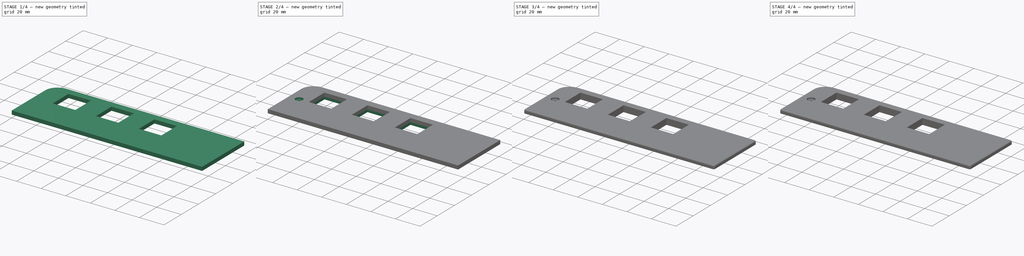
[diagram: build sequence overview — one tinted view per stage of 4, left to right]
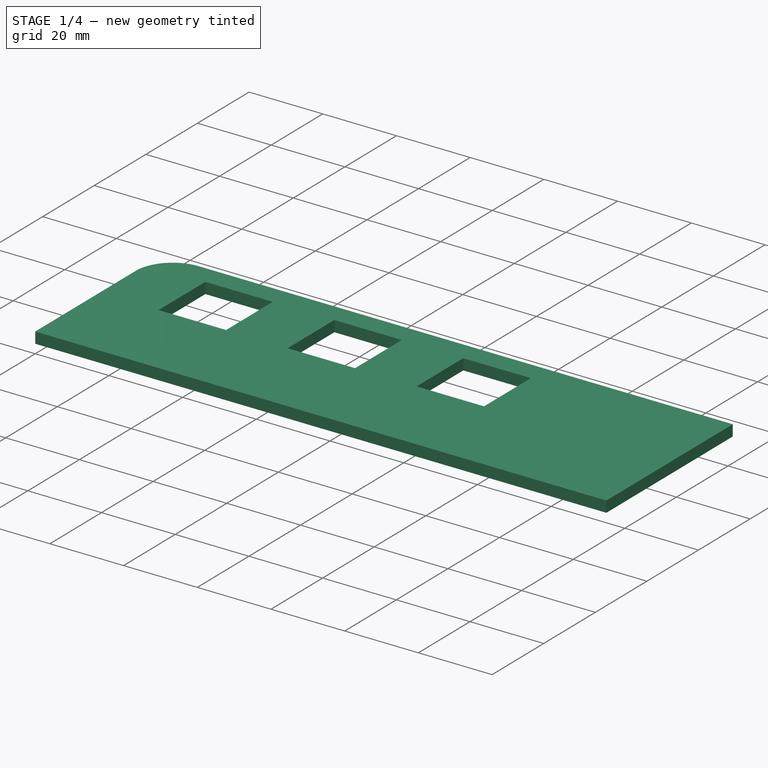
[diagram: stage 1 of 4 — iso view after this stage's code; geometry added in this stage tinted green]
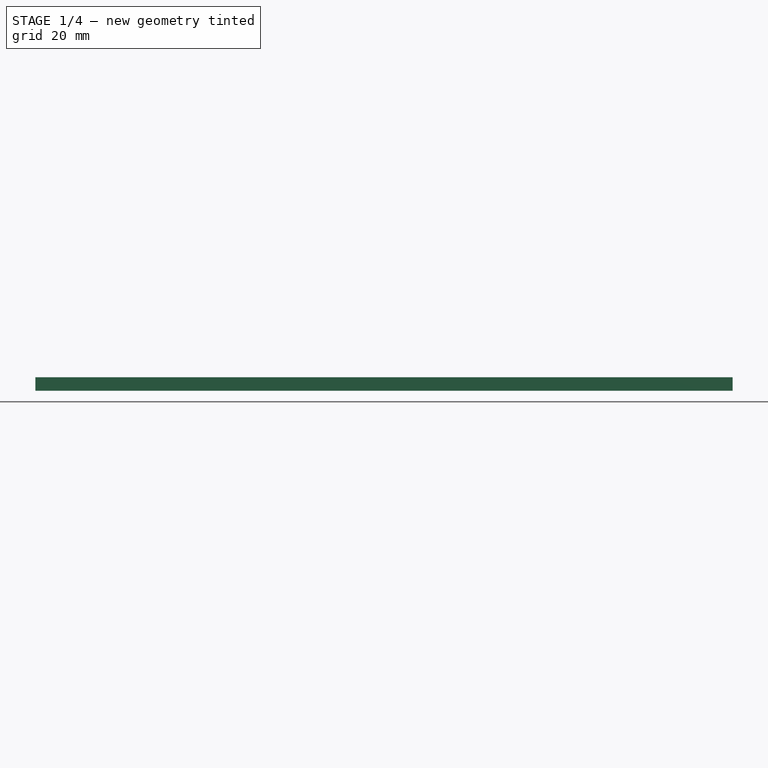
[diagram: stage 1 of 4 — front view after this stage's code; geometry added in this stage tinted green]
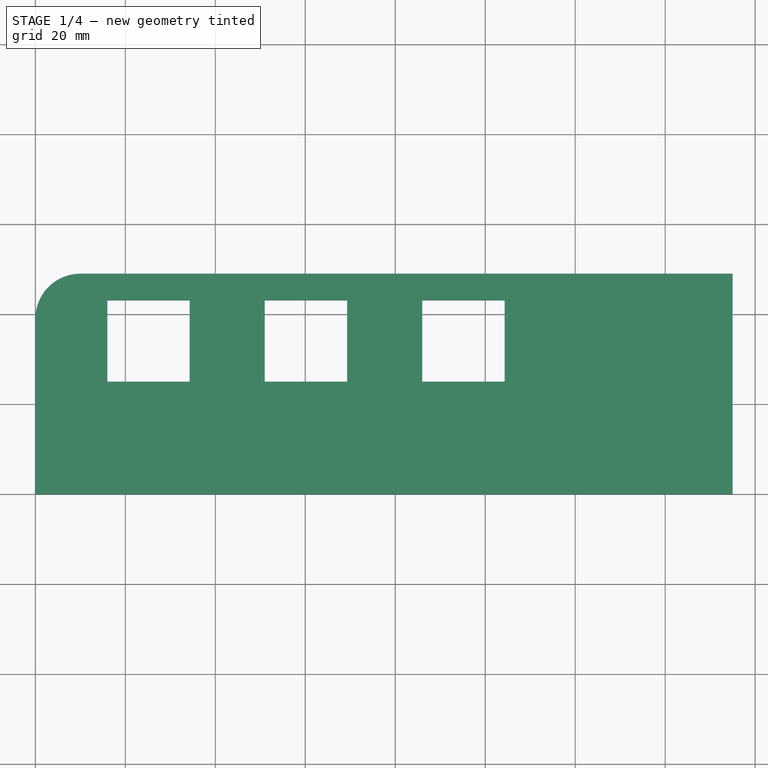
[diagram: stage 1 of 4 — top view after this stage's code; geometry added in this stage tinted green]
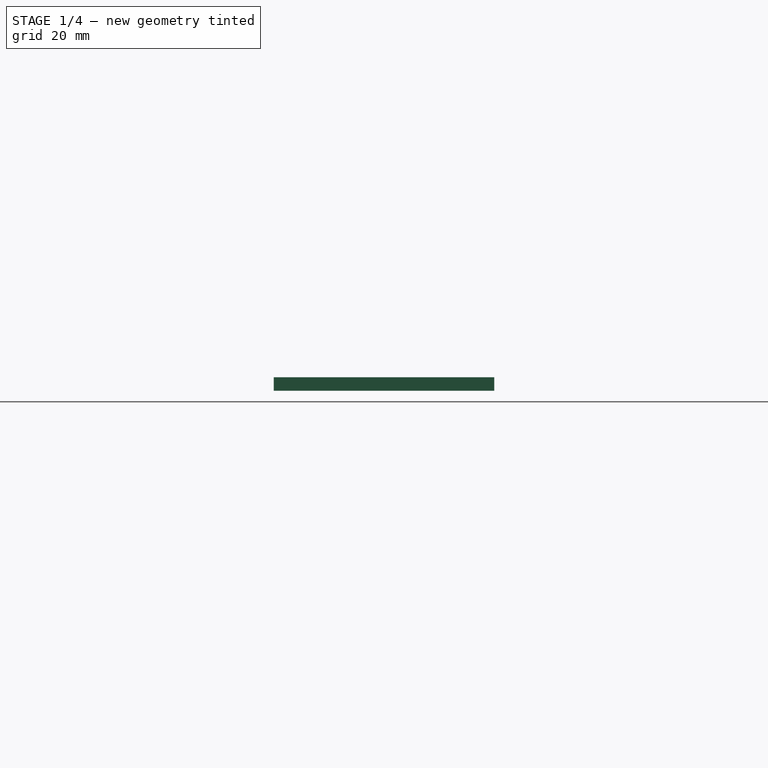
[diagram: stage 1 of 4 — right view after this stage's code; geometry added in this stage tinted green]
FCSTD DOCUMENT  (FreeCAD 0.21R33694 (Git))
Label: EnjoliveurBoutonsGauche2
License: All rights reserved
LicenseURL: http://en.wikipedia.org/wiki/All_rights_reserved
objects: Sketcher::SketchObject×6, PartDesign::Fillet×6, PartDesign::Pocket×3, PartDesign::Pad×2, PartDesign::LinearPattern×2, PartDesign::Hole×1, PartDesign::Body×1
note: 33 computed .brp shape members not serialized (recipe doc carries the construction recipe); baked Part::Feature solids carry a one-line shape summary decoded from their .brp

FEATURE [Sketcher::SketchObject] Sketch  label="Main body sketch"
  FullyConstrained = true
  MapMode = 5
  Support = -> [XY_Plane]
  sketch-geometry (5):
    g0: LineSegment StartX=0 StartY=0 StartZ=0 EndX=155 EndY=0 EndZ=0
    g1: LineSegment StartX=155 StartY=0 StartZ=0 EndX=155 EndY=49 EndZ=0
    g2: LineSegment StartX=0 StartY=0 StartZ=0 EndX=0 EndY=39 EndZ=0
    g3: LineSegment StartX=155 StartY=49 StartZ=0 EndX=10 EndY=49 EndZ=0
    g4: ArcOfCircle CenterX=10 CenterY=39 CenterZ=0 NormalX=0 NormalY=0 NormalZ=1 AngleXU=0 Radius=10 StartAngle=1.5708 EndAngle=3.14159
  constraints (13):
    c: Coincident(g0,g1)
    c: Horizontal(g0)
    c: Vertical(g1)
    c: Coincident(g0,g-1)
    c: DistanceY(g1,g1) = 49
    c: DistanceX(g0,g0) = 155
    c: Coincident(g2,g0)
    c: PointOnObject(g2,g-2)
    c: Coincident(g3,g1)
    c: Horizontal(g3)
    c: Tangent(g4,g3) = -1.5708
    c: Tangent(g4,g2) = 1.5708
    c: DistanceX(g4) = 10
FEATURE [PartDesign::Pad] Pad  label="Main body"
  Direction = (0,0,1)
  Length = 3
  Length2 = 100
  Profile = -> Sketch
  Type = 0
FEATURE [Sketcher::SketchObject] Sketch001  label="Trou carre bouton sketch"
  ExternalGeometry = -> [Pad]
  FullyConstrained = true
  MapMode = 5
  Placement = pos=(0,0,3) rot=(0,0,1;0rad)
  Support = -> [Pad]
  sketch-geometry (4):
    g0: LineSegment StartX=16 StartY=43.1 StartZ=0 EndX=34.3 EndY=43.1 EndZ=0
    g1: LineSegment StartX=34.3 StartY=43.1 StartZ=0 EndX=34.3 EndY=25 EndZ=0
    g2: LineSegment StartX=34.3 StartY=25 StartZ=0 EndX=16 EndY=25 EndZ=0
    g3: LineSegment StartX=16 StartY=25 StartZ=0 EndX=16 EndY=43.1 EndZ=0
  constraints (12):
    c: Coincident(g0,g1)
    c: Coincident(g1,g2)
    c: Coincident(g2,g3)
    c: Coincident(g3,g0)
    c: Horizontal(g0)
    c: Horizontal(g2)
    c: Vertical(g1)
    c: Vertical(g3)
    c: DistanceX(g0,g0) = 18.3
    c: DistanceY(g1,g1) = 18.1
    c: DistanceY(g0,g-3) = 5.9
    c: DistanceX(g2) = 16
FEATURE [PartDesign::Pocket] Pocket  label="Trou carre bouton"
  BaseFeature = -> Pad
  Direction = (0,0,-1)
  Length = 5
  Length2 = 5
  Profile = -> Sketch001
  ReferenceAxis = -> Sketch001 [N_Axis]
  Type = 1
FEATURE [PartDesign::LinearPattern] LinearPattern  label="Trous carres boutons"
  BaseFeature = -> Pocket
  Direction = -> Sketch001 [H_Axis]
  Length = 70
  Occurrences = 3
  Originals = -> [Pocket]
FEATURE [Sketcher::SketchObject] Sketch004  label="Trou commutateur sketch"
  FullyConstrained = false
  MapMode = 5
  Placement = pos=(0,0,1.5) rot=(0,0,1;0rad)
  sketch-geometry (1):
    g0: Circle CenterX=131 CenterY=25 CenterZ=0 NormalX=0 NormalY=0 NormalZ=1 AngleXU=0 Radius=5.7
  constraints (1):
    c: Diameter(g0) = 11.4
FEATURE [PartDesign::Pocket] Pocket003  label="Trou commutateur pocket"
  BaseFeature = -> LinearPattern
  Direction = (0,0,-1)
  Length = 5
  Length2 = 5
  Profile = -> Sketch004
  ReferenceAxis = -> Sketch004 [N_Axis]
  Type = 1
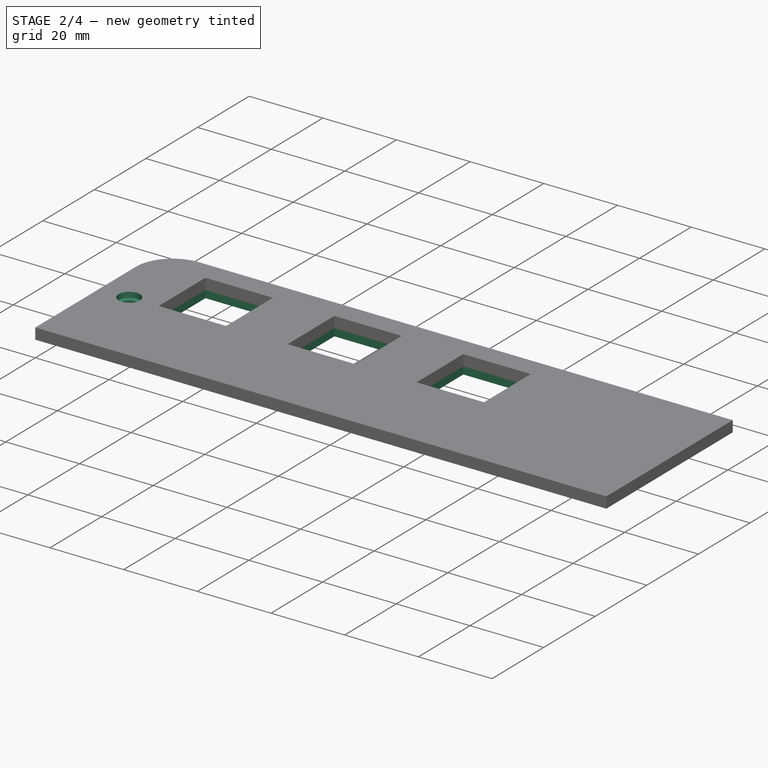
[diagram: stage 2 of 4 — iso view after this stage's code; geometry added in this stage tinted green]
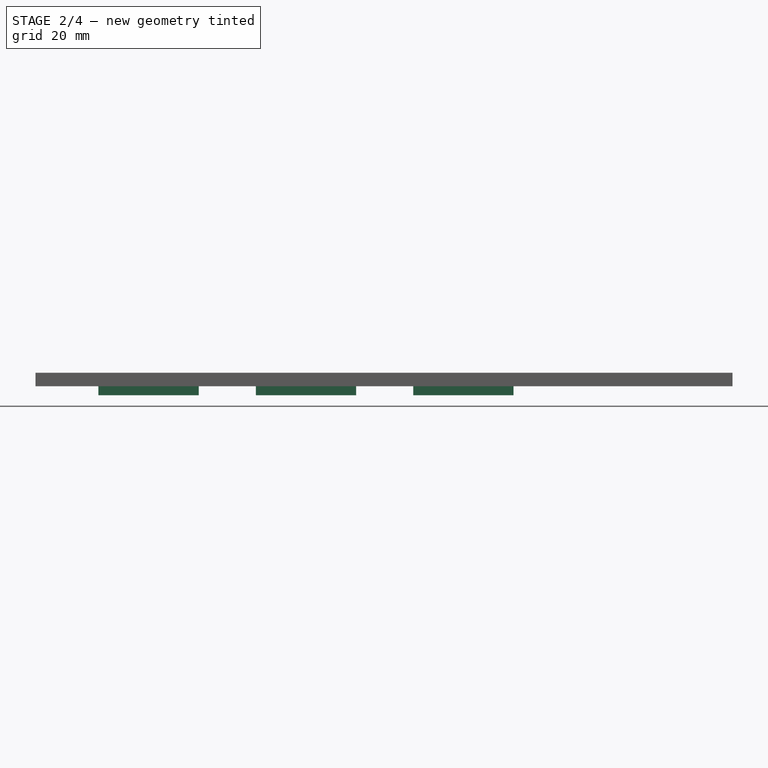
[diagram: stage 2 of 4 — front view after this stage's code; geometry added in this stage tinted green]
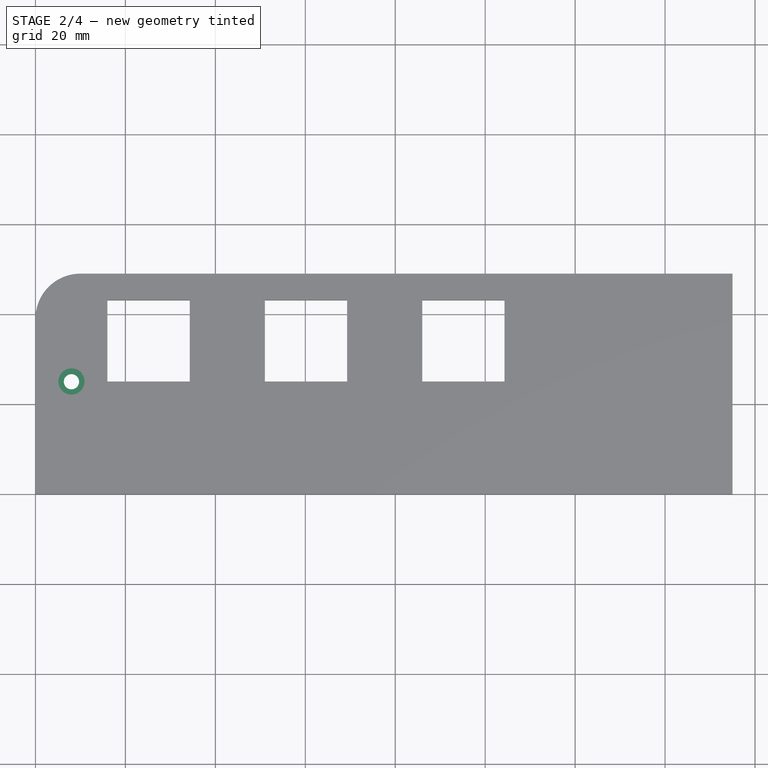
[diagram: stage 2 of 4 — top view after this stage's code; geometry added in this stage tinted green]
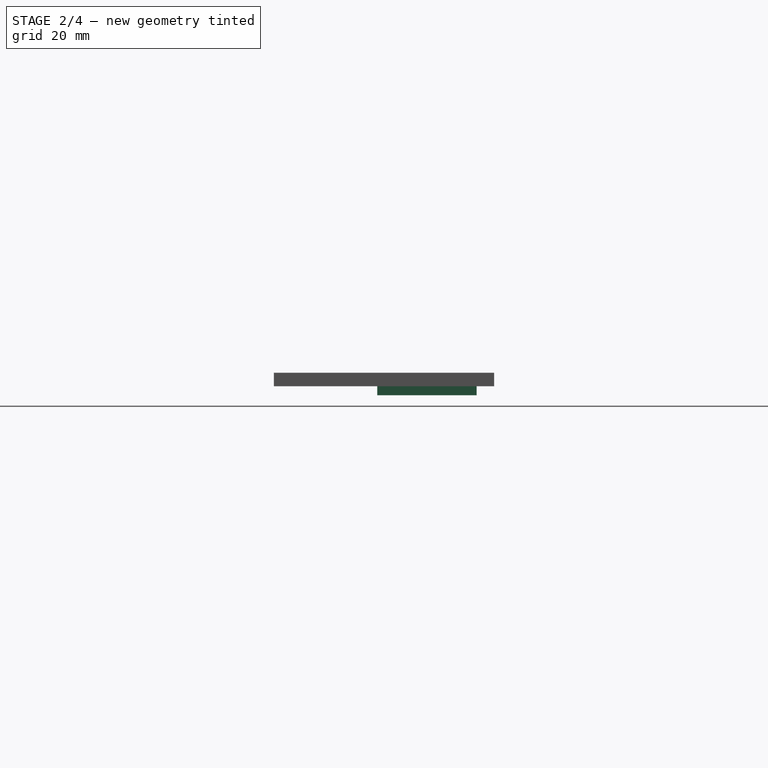
[diagram: stage 2 of 4 — right view after this stage's code; geometry added in this stage tinted green]
FEATURE [Sketcher::SketchObject] Sketch005  label="Carre centrage bouton sketch"
  ExternalGeometry = -> [Pocket003]
  FullyConstrained = true
  MapMode = 5
  Placement = pos=(0,0,0) rot=(1,0,0;3.14159rad)
  Support = -> [Pocket003]
  sketch-geometry (8):
    g0: LineSegment StartX=16 StartY=-25 StartZ=0 EndX=34.3 EndY=-25 EndZ=0
    g1: LineSegment StartX=34.3 StartY=-25 StartZ=0 EndX=34.3 EndY=-43.1 EndZ=0
    g2: LineSegment StartX=34.3 StartY=-43.1 StartZ=0 EndX=16 EndY=-43.1 EndZ=0
    g3: LineSegment StartX=16 StartY=-43.1 StartZ=0 EndX=16 EndY=-25 EndZ=0
    g4: LineSegment StartX=14 StartY=-23 StartZ=0 EndX=36.3 EndY=-23 EndZ=0
    g5: LineSegment StartX=36.3 StartY=-23 StartZ=0 EndX=36.3 EndY=-45.1 EndZ=0
    g6: LineSegment StartX=36.3 StartY=-45.1 StartZ=0 EndX=14 EndY=-45.1 EndZ=0
    g7: LineSegment StartX=14 StartY=-45.1 StartZ=0 EndX=14 EndY=-23 EndZ=0
  constraints (21):
    c: Coincident(g0,g1)
    c: Coincident(g1,g2)
    c: Coincident(g2,g3)
    c: Coincident(g3,g0)
    c: Horizontal(g2)
    c: Vertical(g1)
    c: Coincident(g4,g5)
    c: Coincident(g5,g6)
    c: Coincident(g6,g7)
    c: Coincident(g7,g4)
    c: Horizontal(g4)
    c: Horizontal(g6)
    c: Vertical(g5)
    c: Vertical(g7)
    c: Coincident(g0,g-3)
    c: Coincident(g0,g-3)
    c: Coincident(g2,g-4)
    c: DistanceX(g6,g2) = 2
    c: DistanceX(g1,g5) = 2
    c: DistanceY(g0,g4) = 2
    c: DistanceY(g5,g1) = 2
FEATURE [PartDesign::Pad] Pad001  label="Carre centrage bouton"
  BaseFeature = -> Pocket003
  Direction = (0,0,-1)
  Length = 2
  Length2 = 10
  Profile = -> Sketch005
  ReferenceAxis = -> Sketch005 [N_Axis]
  Type = 0
FEATURE [PartDesign::LinearPattern] LinearPattern001  label="Carres centrage boutons"
  BaseFeature = -> Pad001
  Direction = -> Sketch005 [H_Axis]
  Length = 70
  Occurrences = 3
  Originals = -> [Pad001]
FEATURE [Sketcher::SketchObject] Sketch006  label="Trou fixation gauche sketch"
  ExternalGeometry = -> [LinearPattern001]
  FullyConstrained = true
  MapMode = 5
  Placement = pos=(0,0,3) rot=(0,0,1;0rad)
  Support = -> [LinearPattern001]
  sketch-geometry (2):
    g0: Circle CenterX=8 CenterY=25 CenterZ=0 NormalX=0 NormalY=0 NormalZ=1 AngleXU=0 Radius=1.5
    g1: GeomPoint X=0 Y=25 Z=0
  constraints (4):
    c: Diameter(g0) = 3
    c: PointOnObject(g1,g-4)
    c: Horizontal(g1,g-3)
    c: Symmetric(g1,g-3,g0)
FEATURE [PartDesign::Hole] Hole  label="Trou fixation gauche"
  BaseFeature = -> LinearPattern001
  CustomThreadClearance = 0
  Depth = 328.528
  DepthType = 1
  Diameter = 3.4
  DrillForDepth = false
  DrillPoint = 1
  DrillPointAngle = 118
  HoleCutCountersinkAngle = 90
  HoleCutCustomValues = false
  HoleCutDepth = 1.5
  HoleCutDiameter = 5.8
  HoleCutType = 1
  ModelThread = false
  Profile = -> Sketch006
  Tapered = false
  TaperedAngle = 90
  ThreadClass = 0
  ThreadDepth = 328.528
  ThreadDepthType = 0
  ThreadDirection = 0
  ThreadFit = 0
  ThreadSize = 9
  ThreadType = 1
  Threaded = false
  UseCustomThreadClearance = false
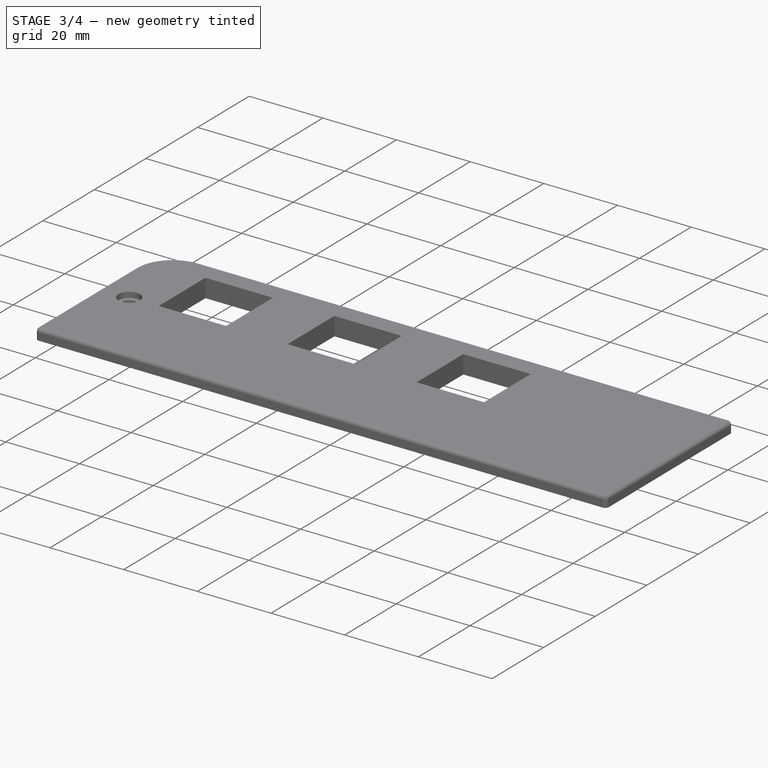
[diagram: stage 3 of 4 — iso view after this stage's code; geometry added in this stage tinted green]
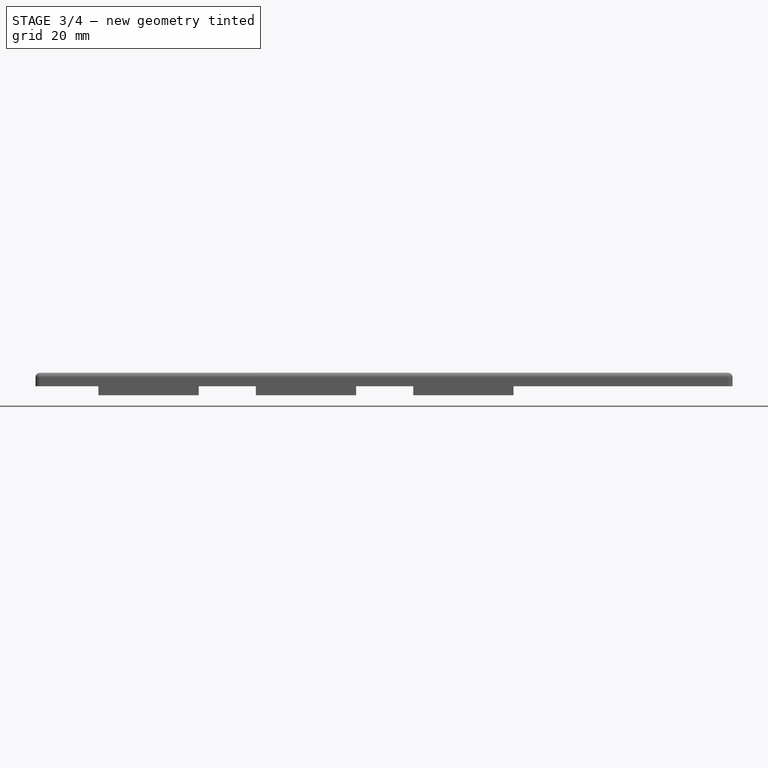
[diagram: stage 3 of 4 — front view after this stage's code; geometry added in this stage tinted green]
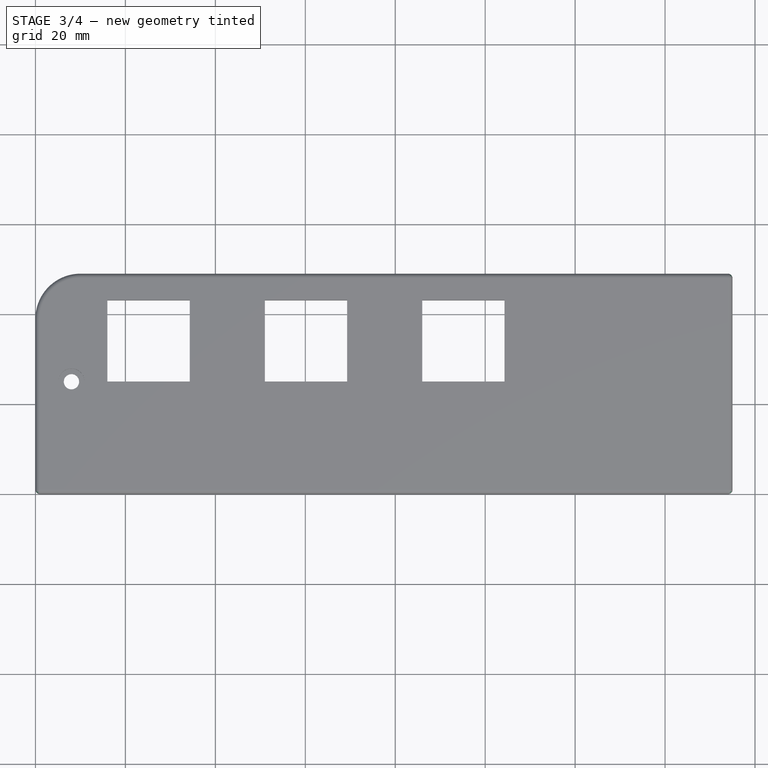
[diagram: stage 3 of 4 — top view after this stage's code; geometry added in this stage tinted green]
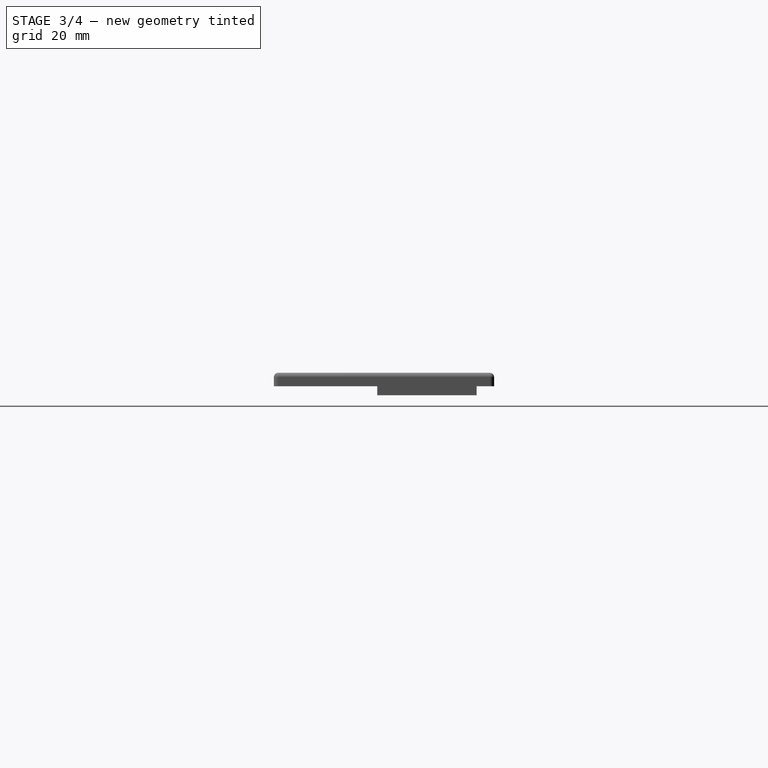
[diagram: stage 3 of 4 — right view after this stage's code; geometry added in this stage tinted green]
FEATURE [PartDesign::Fillet] Fillet003
  Base = -> Hole [Edge28]
  BaseFeature = -> Hole
  Radius = 1
  SupportTransform = false
  UseAllEdges = false
FEATURE [PartDesign::Fillet] Fillet004
  Base = -> Fillet003 [Edge4]
  BaseFeature = -> Fillet003
  Radius = 1
  SupportTransform = false
  UseAllEdges = false
FEATURE [PartDesign::Fillet] Fillet005
  Base = -> Fillet004 [Edge26]
  BaseFeature = -> Fillet004
  Radius = 1
  SupportTransform = false
  UseAllEdges = false
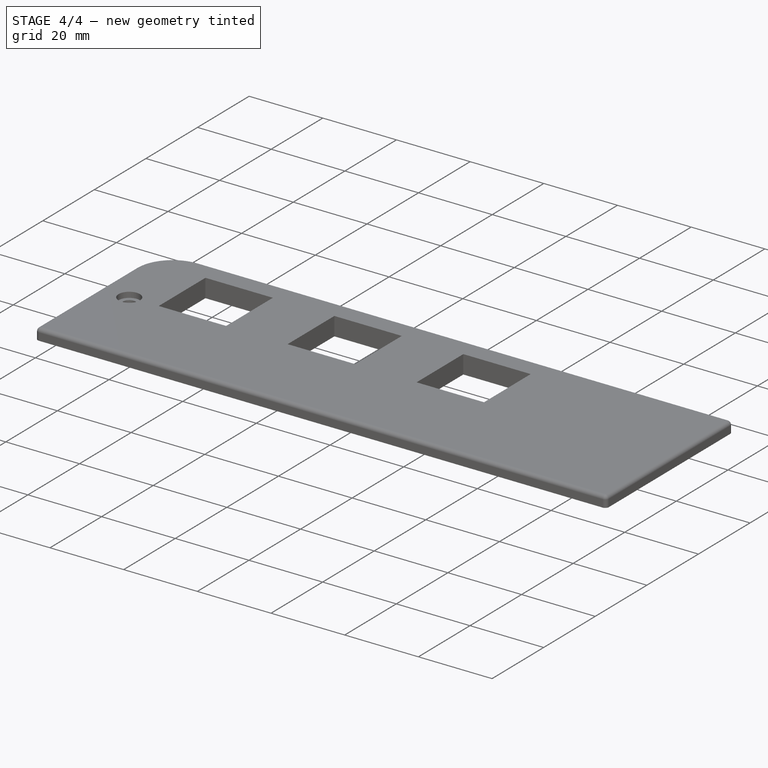
[diagram: stage 4 of 4 — iso view after this stage's code; geometry added in this stage tinted green]
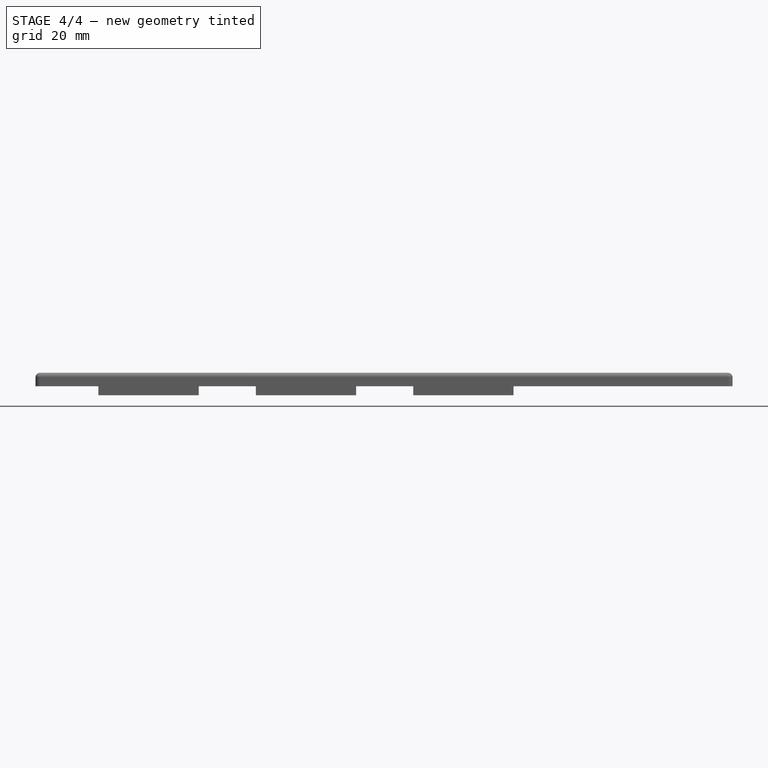
[diagram: stage 4 of 4 — front view after this stage's code; geometry added in this stage tinted green]
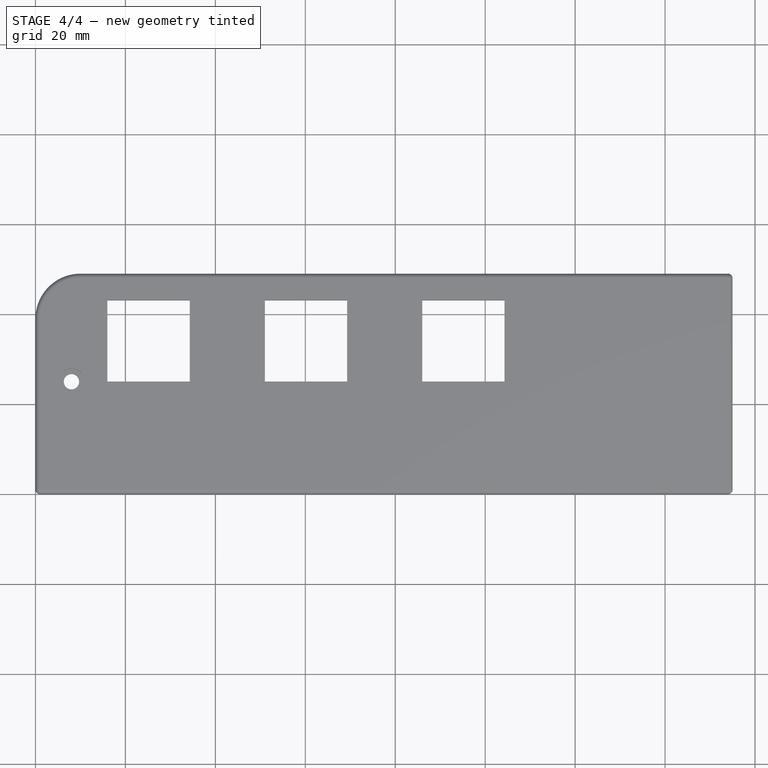
[diagram: stage 4 of 4 — top view after this stage's code; geometry added in this stage tinted green]
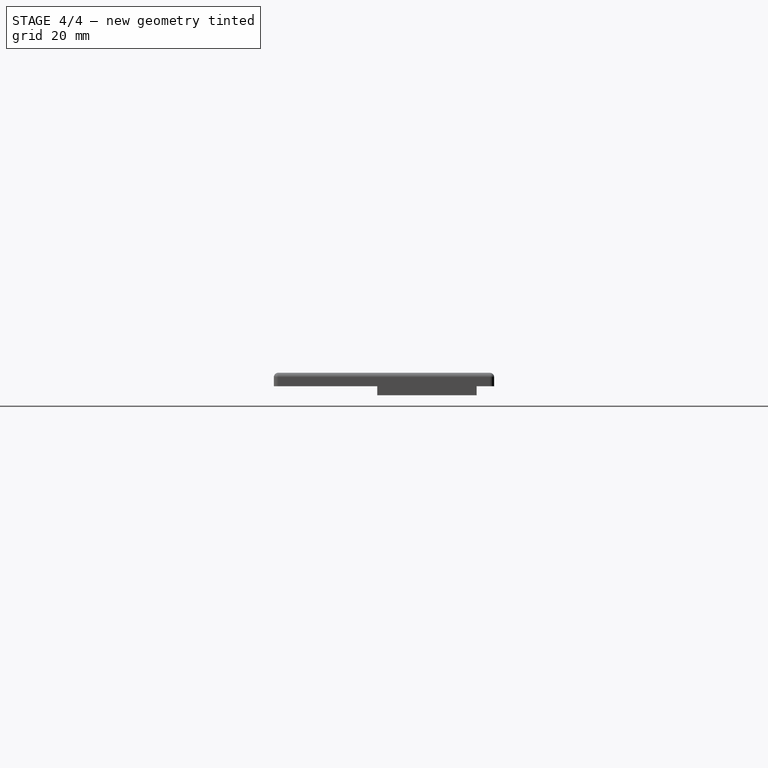
[diagram: stage 4 of 4 — right view after this stage's code; geometry added in this stage tinted green]
FEATURE [PartDesign::Fillet] Fillet
  Base = -> Hole [Edge28]
  BaseFeature = -> Hole
  Radius = 1
  SupportTransform = false
  UseAllEdges = false
FEATURE [PartDesign::Fillet] Fillet001
  Base = -> Fillet [Edge28]
  BaseFeature = -> Fillet
  Radius = 1
  SupportTransform = false
  UseAllEdges = false
FEATURE [PartDesign::Fillet] Fillet002
  Base = -> Fillet001 [Edge1]
  BaseFeature = -> Fillet001
  Radius = 1
  SupportTransform = false
  UseAllEdges = false
FEATURE [Sketcher::SketchObject] Sketch007
  ExternalGeometry = -> [Fillet005]
  FullyConstrained = true
  MapMode = 5
  Placement = pos=(0,0,3) rot=(0,0,1;0rad)
  Support = -> [Fillet005]
  sketch-geometry (5):
    g0: LineSegment StartX=109.5 StartY=46.5 StartZ=0 EndX=152.5 EndY=46.5 EndZ=0
    g1: LineSegment StartX=152.5 StartY=46.5 StartZ=0 EndX=152.5 EndY=3.5 EndZ=0
    g2: LineSegment StartX=152.5 StartY=3.5 StartZ=0 EndX=109.5 EndY=3.5 EndZ=0
    g3: LineSegment StartX=109.5 StartY=3.5 StartZ=0 EndX=109.5 EndY=46.5 EndZ=0
    g4: Circle CenterX=131 CenterY=25 CenterZ=0 NormalX=0 NormalY=0 NormalZ=1 AngleXU=0 Radius=5.7
  constraints (14):
    c: Coincident(g0,g1)
    c: Coincident(g1,g2)
    c: Coincident(g2,g3)
    c: Coincident(g3,g0)
    c: Horizontal(g0)
    c: Horizontal(g2)
    c: Vertical(g1)
    c: Vertical(g3)
    c: DistanceX(g0,g0) = 43
    c: DistanceY(g1,g1) = 43
    c: DistanceY(g0,g-3) = 2.5
    c: DistanceX(g0,g-4) = 2.5
    c: Symmetric(g0,g1,g4)
    c: Diameter(g4) = 11.4
FEATURE [PartDesign::Pocket] Pocket004
  BaseFeature = -> Fillet005
  Direction = (0,0,-1)
  Length = 5
  Length2 = 5
  Profile = -> Sketch007
  ReferenceAxis = -> Sketch007 [N_Axis]
  Type = 1
FEATURE [PartDesign::Body] Body  label="Body part1"
  Group = -> [Sketch,Pad,Sketch001,Pocket,LinearPattern,Sketch004,Pocket003,Sketch005,Pad001,LinearPattern001,Sketch006,Hole,Fillet,Fillet001,Fillet002,Fillet003,Fillet004,Fillet005,Sketch007,Pocket004]
  Origin = -> Origin
  Tip = -> Pocket004
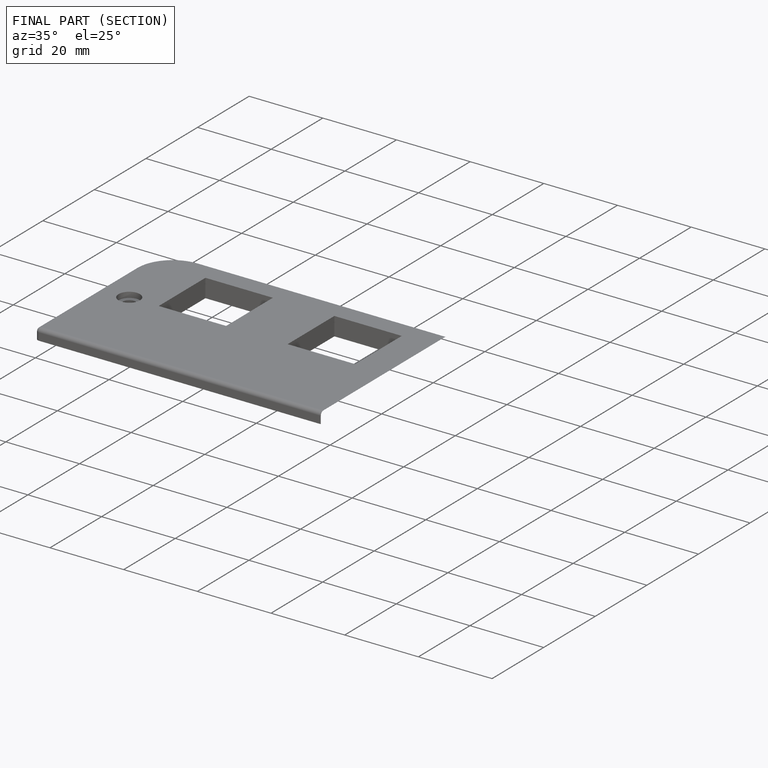
[diagram: finished part — half-section view (interior)]
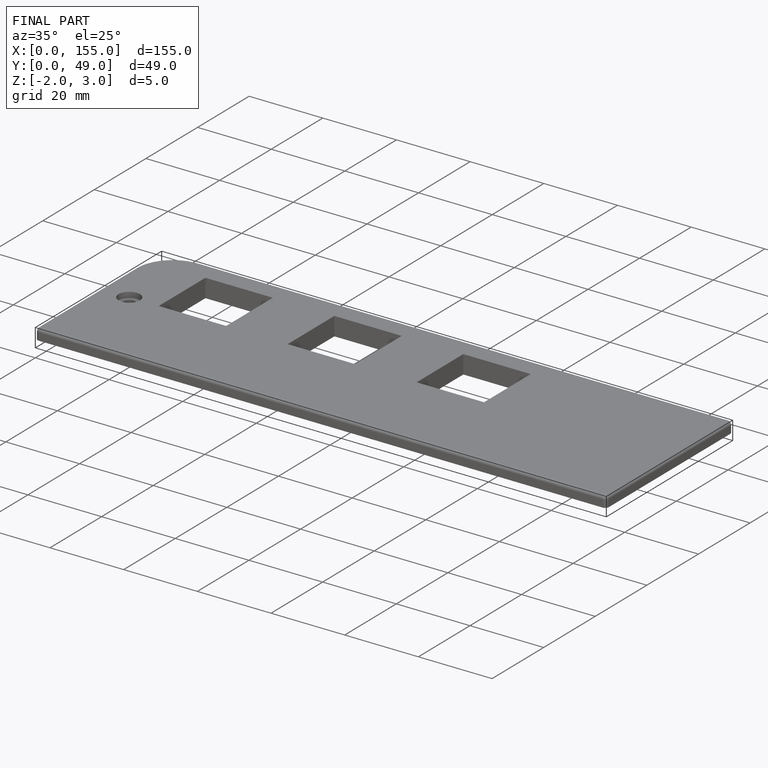
[diagram: finished part — iso view with bounding-box wireframe]
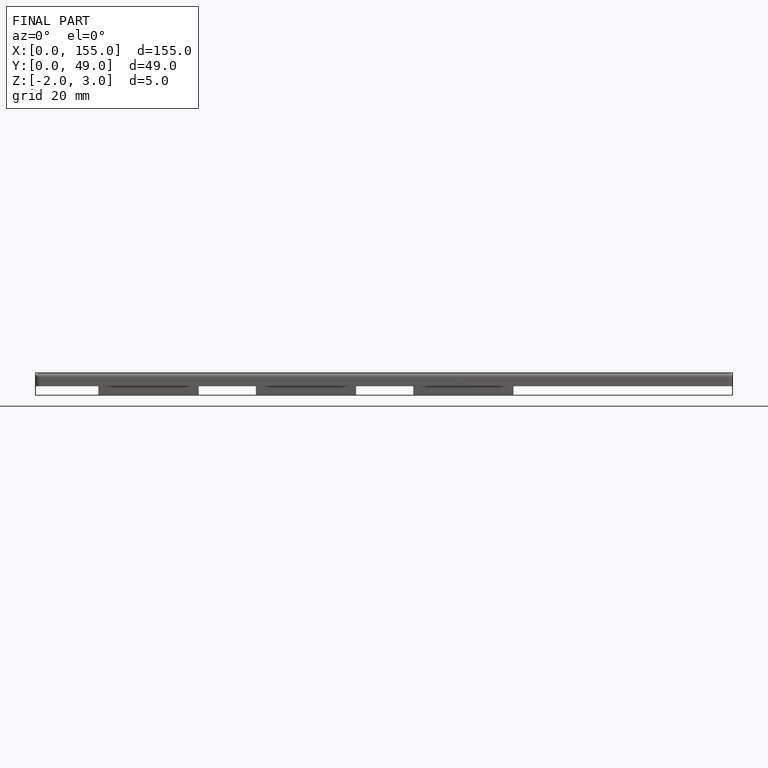
[diagram: finished part — front view with bounding-box wireframe]
